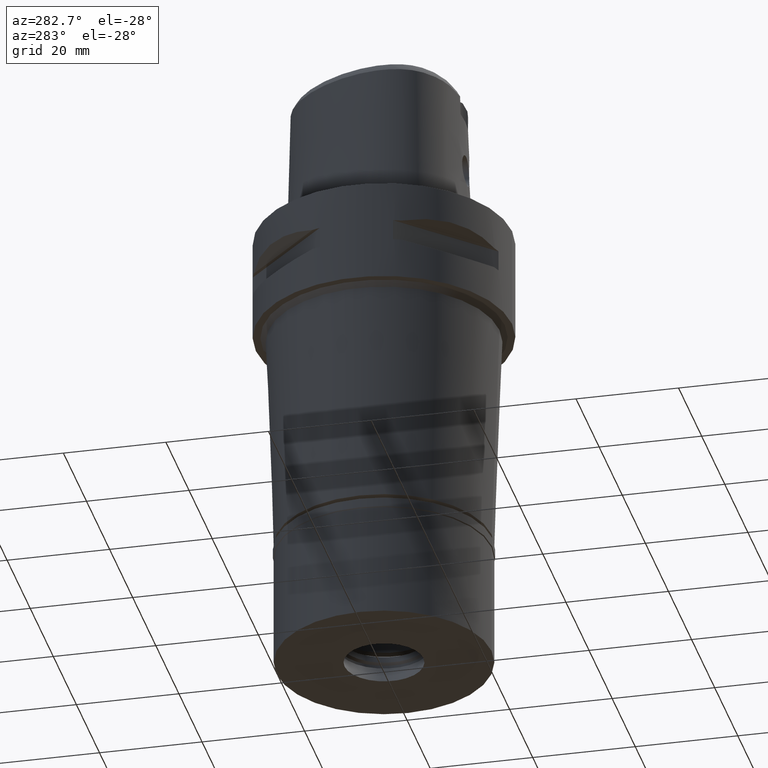
[diagram: clean part render]
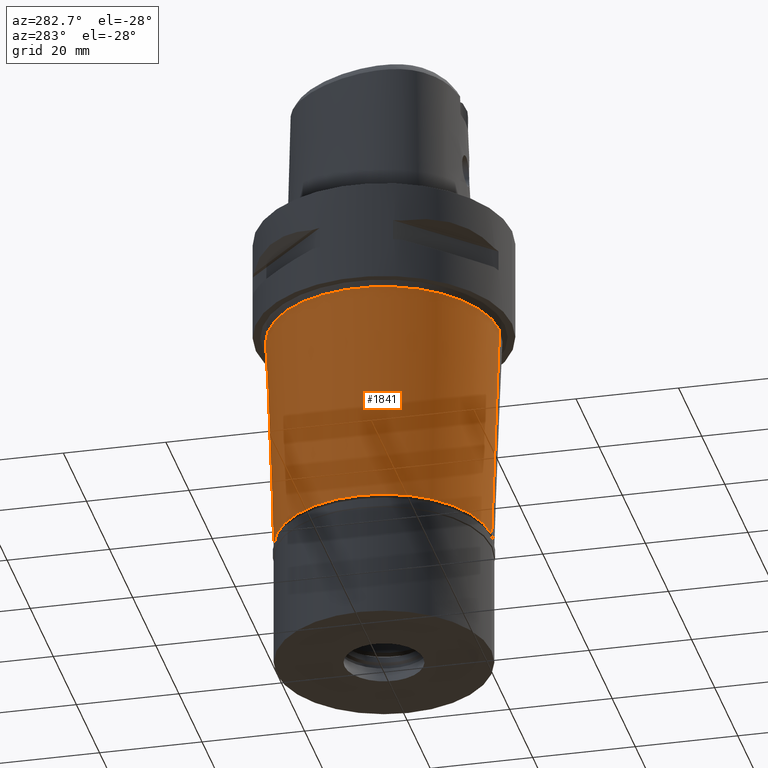
[diagram: same view with one face highlighted and labeled with its STEP entity id]
A machine part, auxiliary view. The second image highlights one B-rep face of the part: STEP entity #1841.
In plain terms, the highlighted conical surface has half-angle 2 deg.
Its self-contained STEP definition (entity closure, byte-faithful):
#375 = AXIS2_PLACEMENT_3D ( 'NONE', #4427, #3986, #2165 ) ;
#402 = EDGE_CURVE ( 'NONE', #2942, #2756, #4405, .T. ) ;
#711 = AXIS2_PLACEMENT_3D ( 'NONE', #4336, #3494, #954 ) ;
#757 = VECTOR ( 'NONE', #1146, 1000.000000000000114 ) ;
#870 = ORIENTED_EDGE ( 'NONE', *, *, #4586, .T. ) ;
#939 = ORIENTED_EDGE ( 'NONE', *, *, #402, .T. ) ;
#954 = DIRECTION ( 'NONE',  ( 0.0000000000000000000, -1.000000000000000000, 0.0000000000000000000 ) ) ;
#1146 = DIRECTION ( 'NONE',  ( 0.0000000000000000000, -0.03489949670253981312, -0.9993908270190943188 ) ) ;
#1312 = CARTESIAN_POINT ( 'NONE',  ( 0.0000000000000000000, 21.00000000000000000, -64.90000000000000568 ) ) ;
#1341 = EDGE_LOOP ( 'NONE', ( #870, #3050, #939, #2837 ) ) ;
#1459 = FACE_OUTER_BOUND ( 'NONE', #1341, .T. ) ;
#1604 = LINE ( 'NONE', #3094, #757 ) ;
#1749 = CARTESIAN_POINT ( 'NONE',  ( 0.0000000000000000000, -22.53302178068999950, -21.00000000000000000 ) ) ;
#1793 = CARTESIAN_POINT ( 'NONE',  ( 0.0000000000000000000, 22.53302178068999950, -21.00000000000000000 ) ) ;
#1841 = ADVANCED_FACE ( 'NONE', ( #1459 ), #2497, .T. ) ;
#1906 = VERTEX_POINT ( 'NONE', #4806 ) ;
#2165 = DIRECTION ( 'NONE',  ( 0.0000000000000000000, 1.000000000000000000, 0.0000000000000000000 ) ) ;
#2279 = CARTESIAN_POINT ( 'NONE',  ( 0.0000000000000000000, 0.0000000000000000000, -64.90000000000000568 ) ) ;
#2497 = CONICAL_SURFACE ( 'NONE', #375, 21.76651089033999753, 0.03490658503987931205 ) ;
#2537 = EDGE_CURVE ( 'NONE', #2942, #1906, #3644, .T. ) ;
#2756 = VERTEX_POINT ( 'NONE', #1793 ) ;
#2805 = VECTOR ( 'NONE', #4453, 1000.000000000000114 ) ;
#2837 = ORIENTED_EDGE ( 'NONE', *, *, #4758, .T. ) ;
#2942 = VERTEX_POINT ( 'NONE', #4588 ) ;
#3050 = ORIENTED_EDGE ( 'NONE', *, *, #2537, .F. ) ;
#3094 = CARTESIAN_POINT ( 'NONE',  ( 0.0000000000000000000, 22.53302178068999950, -21.00000000000000000 ) ) ;
#3290 = VERTEX_POINT ( 'NONE', #1312 ) ;
#3494 = DIRECTION ( 'NONE',  ( 0.0000000000000000000, 0.0000000000000000000, -1.000000000000000000 ) ) ;
#3644 = LINE ( 'NONE', #1749, #2805 ) ;
#3820 = AXIS2_PLACEMENT_3D ( 'NONE', #2279, #4214, #3845 ) ;
#3845 = DIRECTION ( 'NONE',  ( 0.0000000000000000000, 1.000000000000000000, 0.0000000000000000000 ) ) ;
#3895 = CIRCLE ( 'NONE', #3820, 21.00000000000000000 ) ;
#3986 = DIRECTION ( 'NONE',  ( 0.0000000000000000000, 0.0000000000000000000, 1.000000000000000000 ) ) ;
#4214 = DIRECTION ( 'NONE',  ( 0.0000000000000000000, 0.0000000000000000000, 1.000000000000000000 ) ) ;
#4336 = CARTESIAN_POINT ( 'NONE',  ( 0.0000000000000000000, 0.0000000000000000000, -21.00000000000000000 ) ) ;
#4405 = CIRCLE ( 'NONE', #711, 22.53302178068999950 ) ;
#4427 = CARTESIAN_POINT ( 'NONE',  ( 0.0000000000000000000, 0.0000000000000000000, -42.95000000000000284 ) ) ;
#4453 = DIRECTION ( 'NONE',  ( 0.0000000000000000000, 0.03489949670253981312, -0.9993908270190943188 ) ) ;
#4586 = EDGE_CURVE ( 'NONE', #3290, #1906, #3895, .T. ) ;
#4588 = CARTESIAN_POINT ( 'NONE',  ( 0.0000000000000000000, -22.53302178068999950, -21.00000000000000000 ) ) ;
#4758 = EDGE_CURVE ( 'NONE', #2756, #3290, #1604, .T. ) ;
#4806 = CARTESIAN_POINT ( 'NONE',  ( 0.0000000000000000000, -21.00000000000000000, -64.90000000000000568 ) ) ;